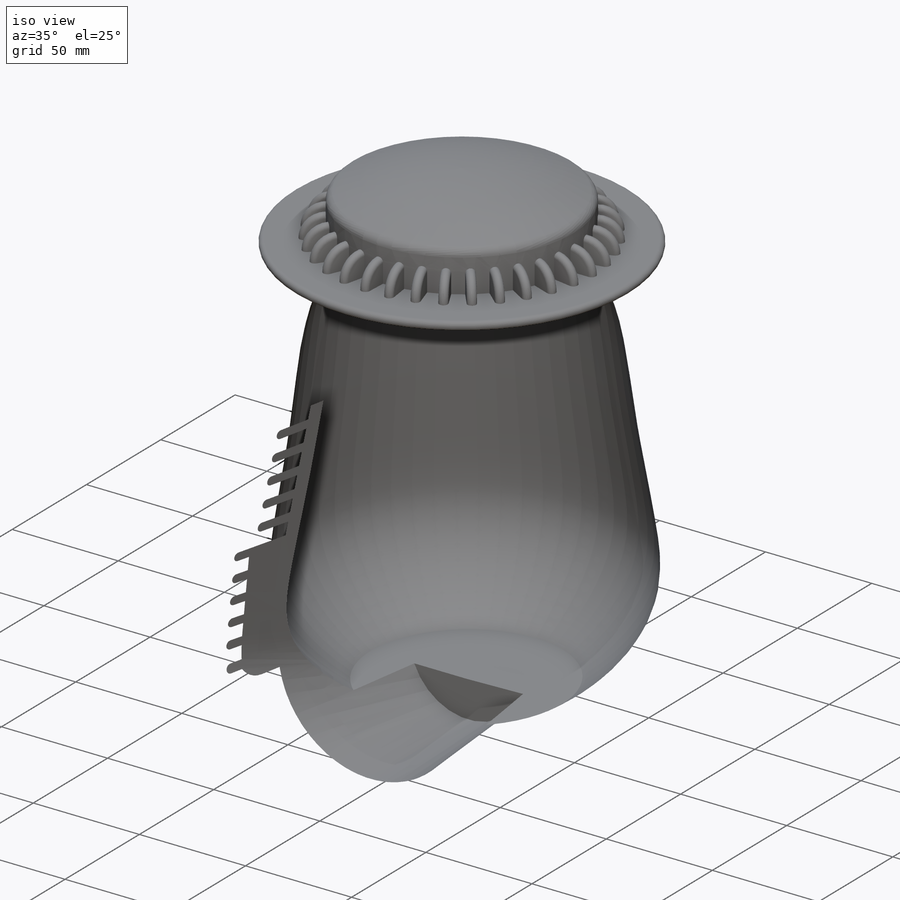
[diagram: iso view]
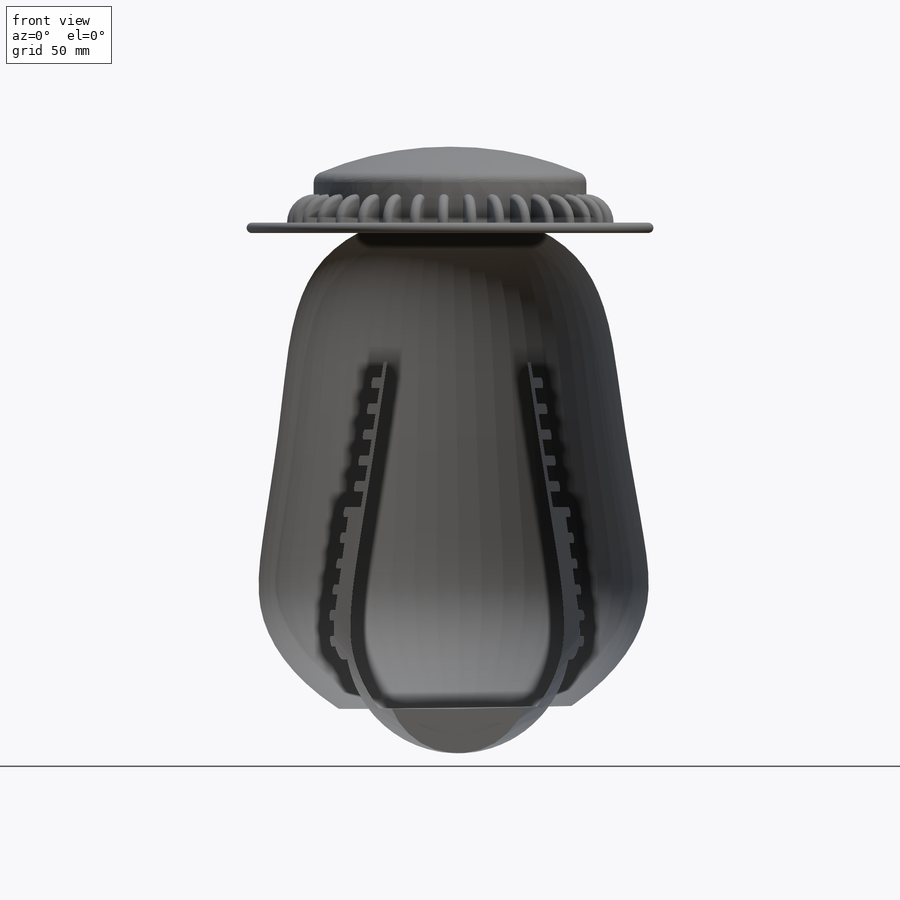
[diagram: front view]
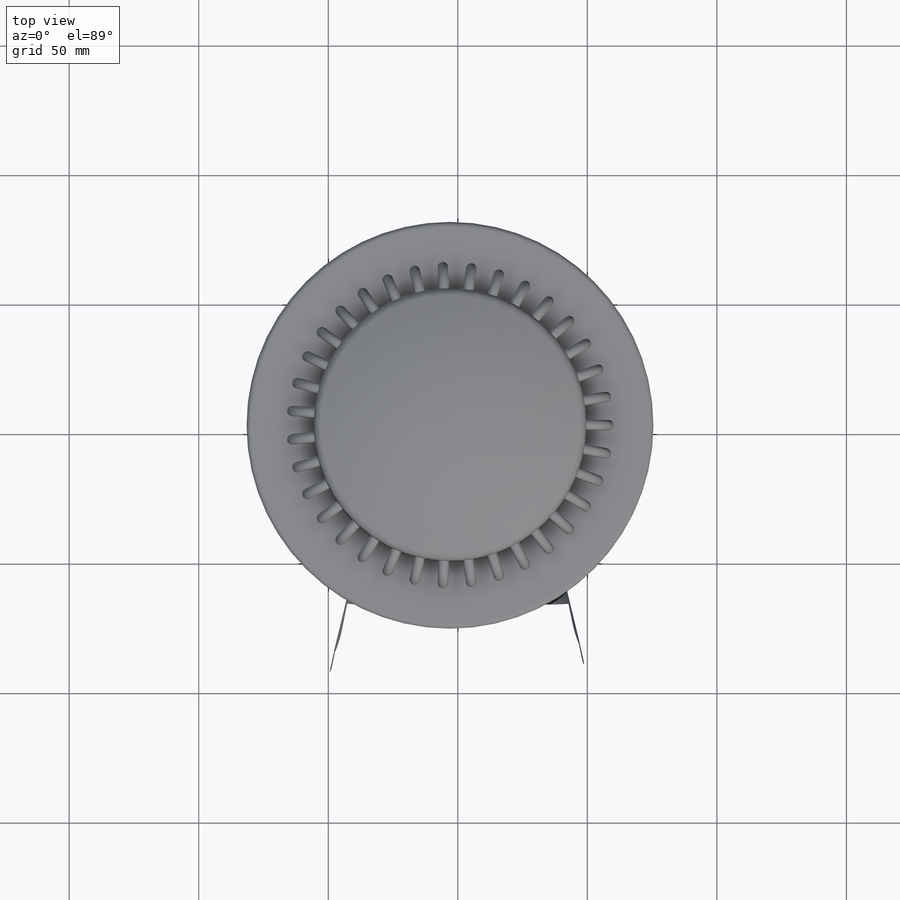
[diagram: top view]
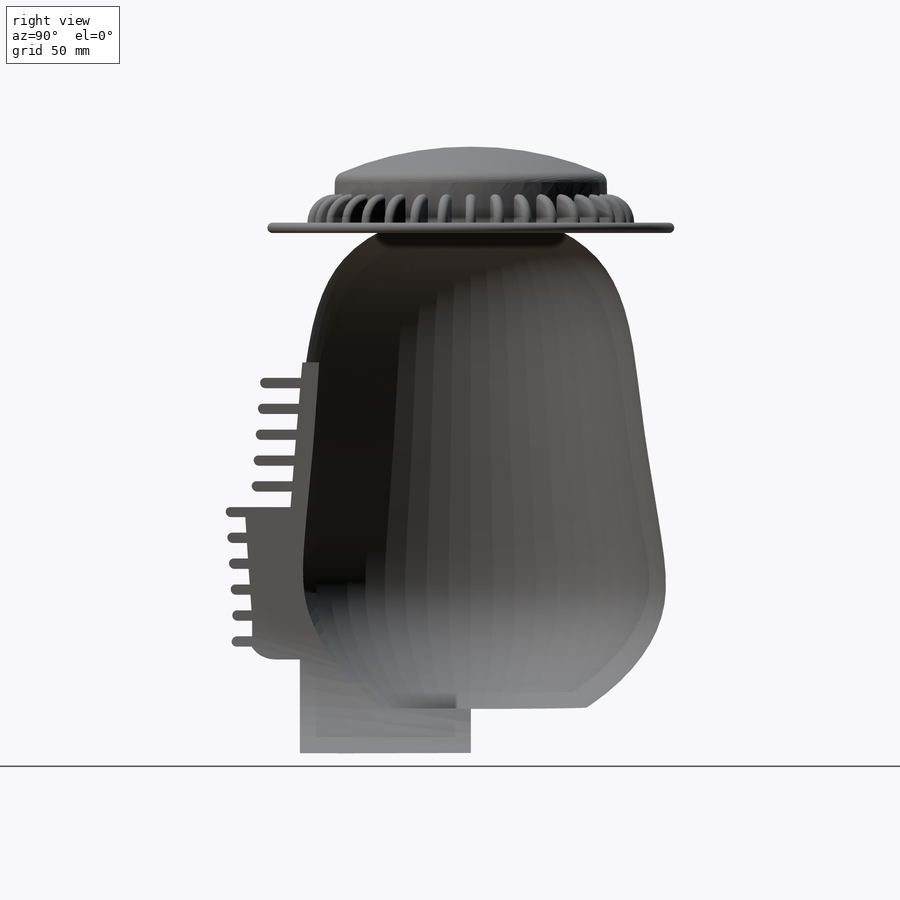
[diagram: right view]
SOLIDWORKS PART (.sldprt)
format: sldprt  version: not decoded by parser v0  size: 3,211,776 bytes
history: native  units: mm
features: sketch x16, plane x5, extrude x4, sweep x2, cut_revolve x2, material x1, revolve x1, cut_extrude x1, fillet x1, pattern_circular x1 (+10 scaffold rows collapsed)
feature tree (44):
  scaffold x10  (default folders/planes/origin — collapsed)
  material  "Material <nicht festgelegt>"
  plane  "Ebene vorne"
  plane  "Ebene oben"
  plane  "Ebene rechts"
  sketch  "Skizze1"  dims[D1=95.0mm D2=~0.30054mm]
  sketch  "Skizze2"  dims[c1.D2=2.0mm c1.D4=2.0mm c1.D1=95.0mm c2.D2=~5.378401mm c2.D3=66.0mm c2.D5=4.0mm c2.D6=~0.581577mm]
  extrude  "Aufsatz-Linear austragen1"  Depth=66mm
  sketch  "Skizze3"  dims[D2=~0.753418mm D1=0.0mm]
  sweep  "Austragung3"
  sketch  "Skizze4"  dims[D1=~0.539044mm]
  extrude  "Aufsatz-Linear austragen2"  Depth=49mm
  sketch  "Skizze5"  dims[c1.D1=~5.467923mm c1.D2=4.0mm c1.D3=~0.511915mm c1.D4=~0.17028mm c2.D3=13.0]
  sketch  "Skizze6"  dims[D1=~0.173418mm]
  sketch  "3D-Skizze1"  dims[c1.D1=~240.26788mm c2.D1=~1.932147mm]
  plane  "Ebene1"
  sketch  "Skizze7"  dims[D1=~0.336208mm]
  sweep  "Austragung4"
  sketch  "Skizze8"  dims[D1=~0.589355mm]
  extrude  "Aufsatz-Linear austragen3"  [1 undecoded]
  sketch  "Skizze9"  dims[c1.D1=~56.040435mm c1.D2=2.0mm c1.D4=2.0mm c1.D5=2.0mm c1.D6=2.0mm c1.D7=2.0mm c2.D7=2.0mm c2.D8=2.0mm c2.D9=2.0mm c2.D10=2.0mm c2.D11=2.0mm c2.D12=2.0mm c2.D13=2.0mm c2.D14=2.0mm c2.D15=~11.38377mm c2.D3=2.0mm c2.D4=2.0mm c2.D5=2.0mm c2.D6=2.0mm c3.D7=2.0mm c3.D8=2.0mm c3.D9=2.0mm c3.D10=2.0mm c3.D11=2.0mm c3.D12=2.0mm c3.D13=2.0mm c3.D14=2.0mm c3.D15=2.0mm c3.D16=2.0mm c3.D17=2.0mm c3.D18=2.0mm c4.D12=4.0mm c4.D1=~183.623445mm c4.D2=~9.751179mm c4.D15=~0.358899mm c4.D3=~7.790198mm c4.D19=6.0mm c4.D20=6.0mm c4.D21=6.0mm c4.D22=6.0mm c4.D23=6.0mm c4.D24=6.0mm c4.D25=6.0mm c4.D26=6.0mm c4.D27=6.0mm c4.D28=6.0mm c4.D29=6.0mm c4.D30=6.0mm c4.D31=6.0mm c4.D32=~0.900632mm c4.D33=6.0mm c4.D34=6.0mm c4.D35=6.0mm c4.D36=~12.069704mm c5.D36=~179.253118deg c6.D36=~12.069704mm c6.D12=~47.24155mm c7.D36=6.0mm c7.D23=6.0mm]
  revolve  "Rotation1"  Angle=360deg
  sketch  "Skizze11"  dims[D1=~1.943523mm]
  cut_revolve  "Schnitt-Rotation1"  Angle=360deg
  sketch  "Skizze12"  dims[c1.D1=~4.000768mm c1.D2=~20.95915mm c2.D1=4.0mm c2.D2=~0.272051mm]
  extrude  "Aufsatz-Linear austragen4"  Depth=11mm
  sketch  "Skizze13"  dims[D1=~0.311284mm]
  cut_extrude  "Schnitt-Linear austragen2"  Depth=5mm
  fillet  "Verrundung1"  Radius=2mm
  pattern_circular  "Kreismuster5"  Count=35 Angle=360deg
  sketch  "Skizze15"  dims[D1=~9.311299mm]
  sketch  "Skizze16"  dims[D1=~1.160756mm]
  plane  "Ebene2"  Offset=108.487714mm
  sketch  "Skizze17"  dims[D1=~58.741107mm]
  cut_revolve  "Oberfläche-Ebene2"  [1 undecoded]
decode coverage: 24 of 28 modeling features carry decoded parameters
note: ~ marks probable driven/reference dimensions
note: 2 parameter values undecoded
note: suppression state not decoded; provenance and decode notes live in map.json
